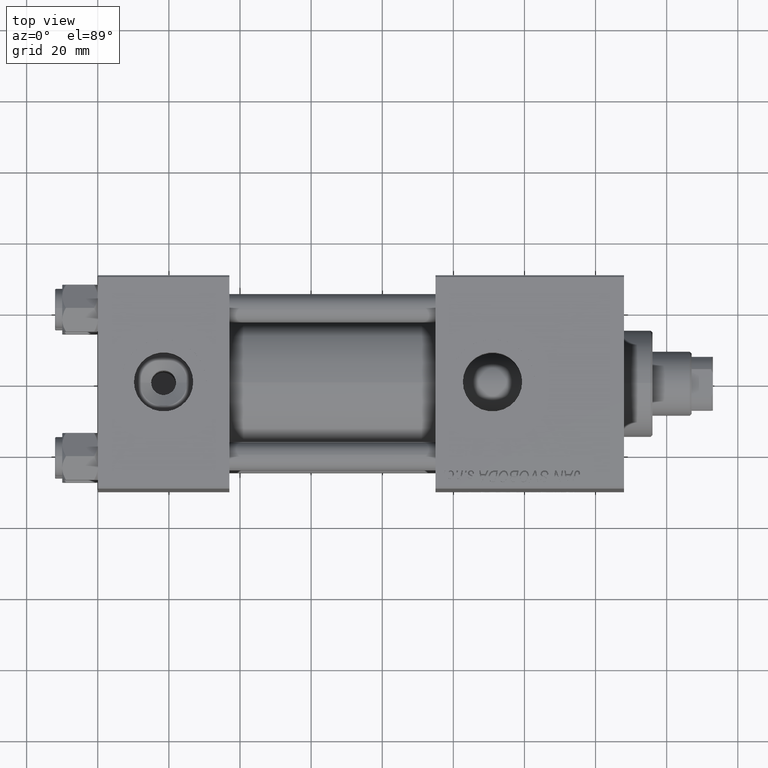
[diagram: clean part render]
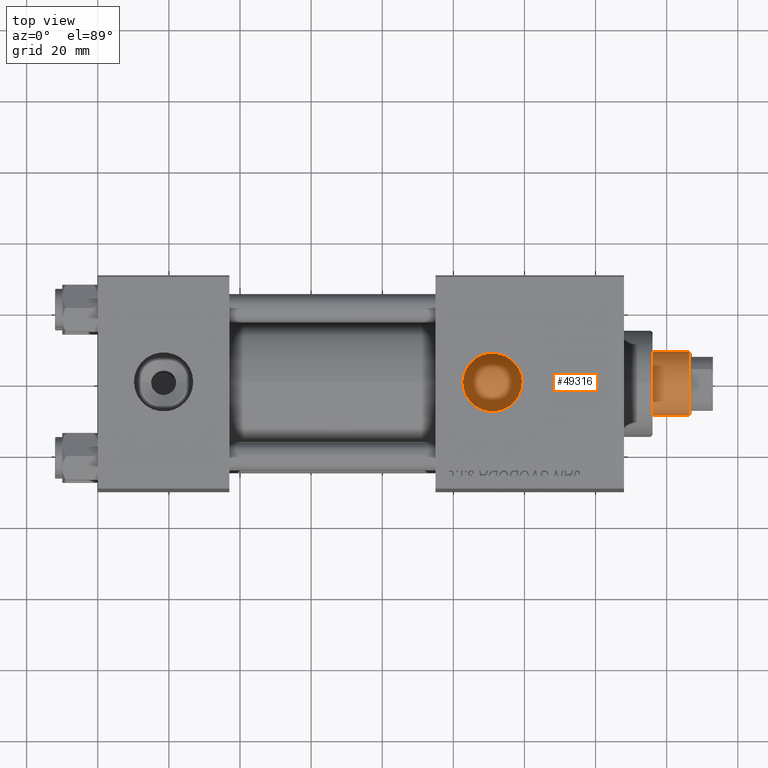
[diagram: same view with one face highlighted and labeled with its STEP entity id]
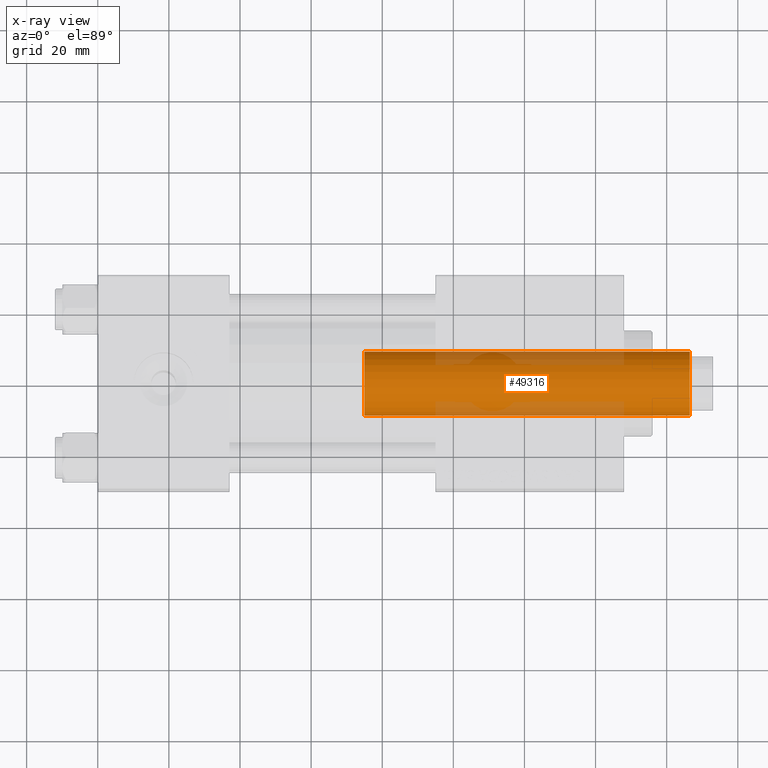
[diagram: x-ray of the same camera — body ghosted, the highlighted face saturated]
A machine part, top view. The second image highlights one B-rep face of the part: STEP entity #49316.
The next image is the same camera in x-ray: the body ghosted, the highlighted face saturated — about 21% of this face is hidden behind the body in this view.
In plain terms, the highlighted cylindrical surface (edge-blend (fillet) strip) has radius 9 mm, axis along (-1, 0, 0).
Its self-contained STEP definition (entity closure, byte-faithful):
#208 = ORIENTED_EDGE ( 'NONE', *, *, #46468, .T. ) ;
#325 = ORIENTED_EDGE ( 'NONE', *, *, #37556, .F. ) ;
#1052 = EDGE_CURVE ( 'NONE', #28833, #25959, #9684, .T. ) ;
#3227 = DIRECTION ( 'NONE',  ( -0.000000000000000000, -0.000000000000000000, -1.000000000000000000 ) ) ;
#3653 = CARTESIAN_POINT ( 'NONE',  ( 0.000000000000000000, 0.000000000000000000, 38.00000000000000000 ) ) ;
#4017 = LINE ( 'NONE', #31853, #23209 ) ;
#8094 = AXIS2_PLACEMENT_3D ( 'NONE', #47774, #14928, #31110 ) ;
#9684 = CIRCLE ( 'NONE', #29182, 9.000000000000000000 ) ;
#10715 = CARTESIAN_POINT ( 'NONE',  ( -9.000000000000000000, 0.000000000000000000, 129.5000000000000000 ) ) ;
#14051 = EDGE_CURVE ( 'NONE', #37650, #45486, #25660, .T. ) ;
#14928 = DIRECTION ( 'NONE',  ( -0.000000000000000000, -0.000000000000000000, -1.000000000000000000 ) ) ;
#17991 = LINE ( 'NONE', #42375, #30800 ) ;
#18909 = FACE_OUTER_BOUND ( 'NONE', #47746, .T. ) ;
#20880 = ORIENTED_EDGE ( 'NONE', *, *, #1052, .T. ) ;
#22239 = AXIS2_PLACEMENT_3D ( 'NONE', #48198, #51905, #39219 ) ;
#23209 = VECTOR ( 'NONE', #3227, 1000.000000000000000 ) ;
#23519 = CARTESIAN_POINT ( 'NONE',  ( 9.000000000000000000, 1.102182119232617714E-15, 129.5000000000000000 ) ) ;
#25660 = CIRCLE ( 'NONE', #22239, 9.000000000000000000 ) ;
#25959 = VERTEX_POINT ( 'NONE', #44971 ) ;
#27534 = DIRECTION ( 'NONE',  ( 1.000000000000000000, 0.000000000000000000, 0.000000000000000000 ) ) ;
#28833 = VERTEX_POINT ( 'NONE', #40514 ) ;
#29182 = AXIS2_PLACEMENT_3D ( 'NONE', #3653, #52437, #27534 ) ;
#30800 = VECTOR ( 'NONE', #34940, 1000.000000000000000 ) ;
#31110 = DIRECTION ( 'NONE',  ( -1.000000000000000000, 0.000000000000000000, 0.000000000000000000 ) ) ;
#31853 = CARTESIAN_POINT ( 'NONE',  ( -9.000000000000000000, 0.000000000000000000, 130.0000000000000000 ) ) ;
#34940 = DIRECTION ( 'NONE',  ( -0.000000000000000000, -0.000000000000000000, -1.000000000000000000 ) ) ;
#35089 = CYLINDRICAL_SURFACE ( 'NONE', #8094, 9.000000000000000000 ) ;
#37556 = EDGE_CURVE ( 'NONE', #37650, #25959, #17991, .T. ) ;
#37650 = VERTEX_POINT ( 'NONE', #23519 ) ;
#39219 = DIRECTION ( 'NONE',  ( 1.000000000000000000, 0.000000000000000000, 0.000000000000000000 ) ) ;
#40514 = CARTESIAN_POINT ( 'NONE',  ( -9.000000000000000000, 0.000000000000000000, 38.00000000000000000 ) ) ;
#42375 = CARTESIAN_POINT ( 'NONE',  ( 9.000000000000000000, 1.102182119232617714E-15, 130.0000000000000000 ) ) ;
#44971 = CARTESIAN_POINT ( 'NONE',  ( 9.000000000000000000, 1.102182119232617714E-15, 38.00000000000000000 ) ) ;
#45486 = VERTEX_POINT ( 'NONE', #10715 ) ;
#46468 = EDGE_CURVE ( 'NONE', #45486, #28833, #4017, .T. ) ;
#47746 = EDGE_LOOP ( 'NONE', ( #325, #52333, #208, #20880 ) ) ;
#47774 = CARTESIAN_POINT ( 'NONE',  ( 0.000000000000000000, 0.000000000000000000, 130.0000000000000000 ) ) ;
#48198 = CARTESIAN_POINT ( 'NONE',  ( 0.000000000000000000, 0.000000000000000000, 129.5000000000000000 ) ) ;
#49316 = ADVANCED_FACE ( 'NONE', ( #18909 ), #35089, .T. ) ;
#51905 = DIRECTION ( 'NONE',  ( 0.000000000000000000, 0.000000000000000000, -1.000000000000000000 ) ) ;
#52333 = ORIENTED_EDGE ( 'NONE', *, *, #14051, .T. ) ;
#52437 = DIRECTION ( 'NONE',  ( 0.000000000000000000, 0.000000000000000000, 1.000000000000000000 ) ) ;